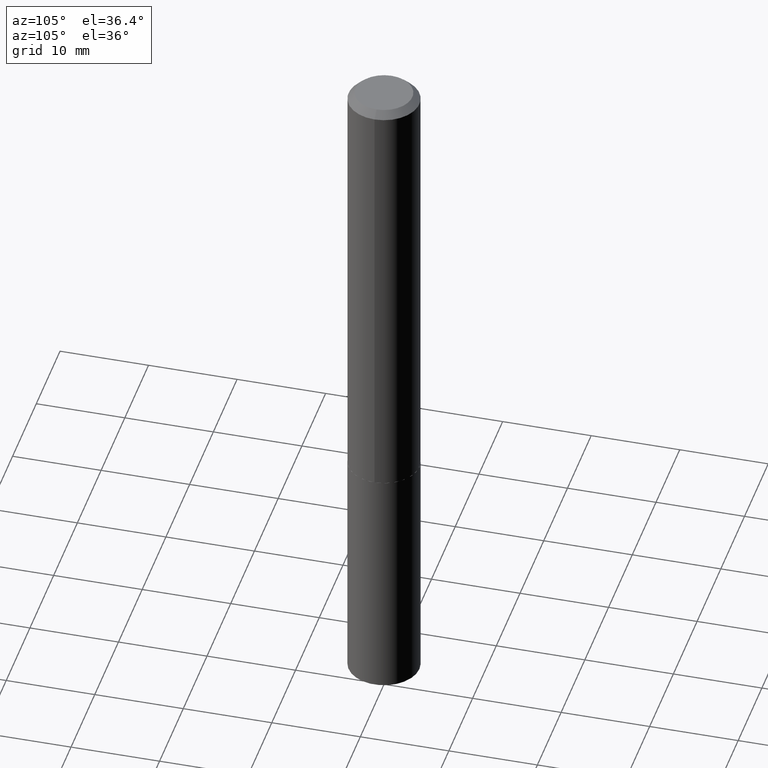
[diagram: clean part render]
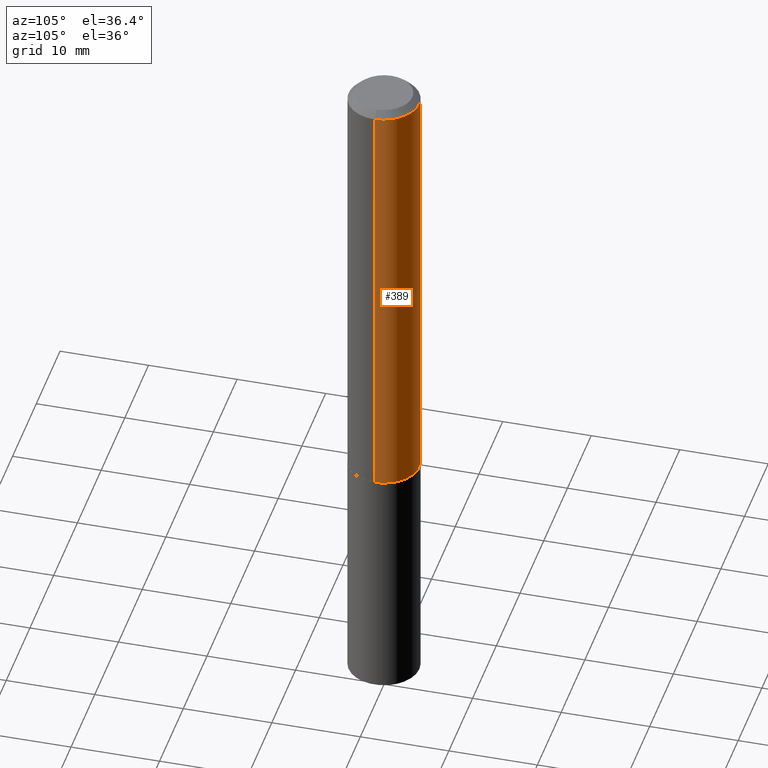
[diagram: same view with one face highlighted and labeled with its STEP entity id]
A machine part, auxiliary view. The second image highlights one B-rep face of the part: STEP entity #389.
In plain terms, the highlighted cylindrical surface (partial cylindrical patch) has radius 4.0005 mm, axis along (-0, 0, 1).
Its self-contained STEP definition (entity closure, byte-faithful):
#5 = AXIS2_PLACEMENT_3D ( 'NONE', #250, #99, #66 ) ;
#13 = DIRECTION ( 'NONE',  ( 1.000000000000000000, -6.982962677686265922E-15, 4.876176775795935232E-29 ) ) ;
#19 = FACE_OUTER_BOUND ( 'NONE', #128, .T. ) ;
#30 = EDGE_CURVE ( 'NONE', #318, #379, #388, .T. ) ;
#31 = CARTESIAN_POINT ( 'NONE',  ( 0.1575000000000001399, -1.099816621735587875E-15, 7.679978421878605039E-30 ) ) ;
#52 = VERTEX_POINT ( 'NONE', #234 ) ;
#59 = DIRECTION ( 'NONE',  ( 1.000000000000000000, -6.982962677686268288E-15, 0.000000000000000000 ) ) ;
#66 = DIRECTION ( 'NONE',  ( 1.000000000000000000, -6.982962677686265922E-15, 0.000000000000000000 ) ) ;
#76 = EDGE_CURVE ( 'NONE', #318, #52, #297, .T. ) ;
#77 = CARTESIAN_POINT ( 'NONE',  ( -0.1575000000000002787, -5.752130466021151023E-15, -1.968000000000000194 ) ) ;
#80 = CARTESIAN_POINT ( 'NONE',  ( 0.000000000000000000, 0.000000000000000000, 0.000000000000000000 ) ) ;
#97 = CARTESIAN_POINT ( 'NONE',  ( -0.1575000000000000011, -2.371067224518920471E-15, -0.03125000000000021511 ) ) ;
#99 = DIRECTION ( 'NONE',  ( -2.445468806185136597E-29, 3.491481338843145583E-15, 1.000000000000000000 ) ) ;
#115 = AXIS2_PLACEMENT_3D ( 'NONE', #203, #177, #59 ) ;
#121 = DIRECTION ( 'NONE',  ( -2.445468806185136877E-29, 3.491481338843145188E-15, 1.000000000000000000 ) ) ;
#126 = CARTESIAN_POINT ( 'NONE',  ( -0.1575000000000001399, 1.119104808822158787E-15, -7.747322767151482590E-30 ) ) ;
#128 = EDGE_LOOP ( 'NONE', ( #290, #196, #351, #319 ) ) ;
#140 = AXIS2_PLACEMENT_3D ( 'NONE', #80, #284, #13 ) ;
#151 = VECTOR ( 'NONE', #121, 39.37007874015748143 ) ;
#177 = DIRECTION ( 'NONE',  ( -2.445468806185136597E-29, 3.491481338843145583E-15, 1.000000000000000000 ) ) ;
#196 = ORIENTED_EDGE ( 'NONE', *, *, #327, .T. ) ;
#203 = CARTESIAN_POINT ( 'NONE',  ( 4.812682610572349594E-29, -6.871235274843310993E-15, -1.968000000000000194 ) ) ;
#212 = CIRCLE ( 'NONE', #5, 0.1575000000000000011 ) ;
#220 = CYLINDRICAL_SURFACE ( 'NONE', #140, 0.1575000000000001399 ) ;
#234 = CARTESIAN_POINT ( 'NONE',  ( 0.1575000000000000011, -1.208925413574435989E-15, -0.03125000000000021511 ) ) ;
#245 = EDGE_CURVE ( 'NONE', #52, #328, #212, .T. ) ;
#250 = CARTESIAN_POINT ( 'NONE',  ( 7.642090019328603538E-31, -1.091087918388490390E-16, -0.03125000000000021511 ) ) ;
#275 = LINE ( 'NONE', #126, #279 ) ;
#279 = VECTOR ( 'NONE', #366, 39.37007874015748143 ) ;
#284 = DIRECTION ( 'NONE',  ( -2.445468806185136597E-29, 3.491481338843145583E-15, 1.000000000000000000 ) ) ;
#290 = ORIENTED_EDGE ( 'NONE', *, *, #30, .T. ) ;
#297 = LINE ( 'NONE', #31, #151 ) ;
#318 = VERTEX_POINT ( 'NONE', #364 ) ;
#319 = ORIENTED_EDGE ( 'NONE', *, *, #76, .F. ) ;
#327 = EDGE_CURVE ( 'NONE', #379, #328, #275, .T. ) ;
#328 = VERTEX_POINT ( 'NONE', #97 ) ;
#351 = ORIENTED_EDGE ( 'NONE', *, *, #245, .F. ) ;
#364 = CARTESIAN_POINT ( 'NONE',  ( 0.1575000000000002787, -7.971051896578899262E-15, -1.968000000000000194 ) ) ;
#366 = DIRECTION ( 'NONE',  ( -2.445468806185136877E-29, 3.491481338843145188E-15, 1.000000000000000000 ) ) ;
#379 = VERTEX_POINT ( 'NONE', #77 ) ;
#388 = CIRCLE ( 'NONE', #115, 0.1575000000000002787 ) ;
#389 = ADVANCED_FACE ( 'NONE', ( #19 ), #220, .T. ) ;